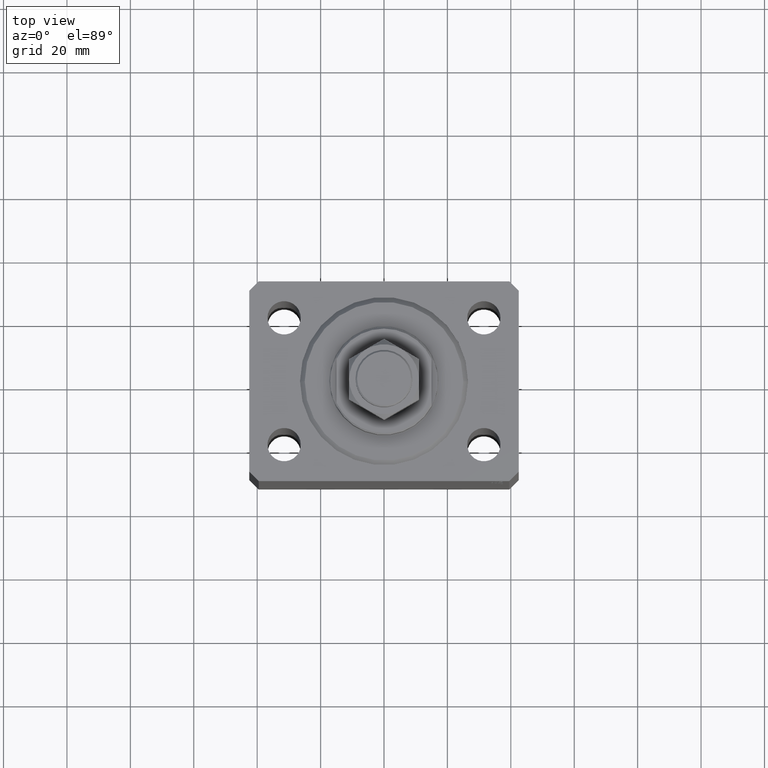
[diagram: clean part render]
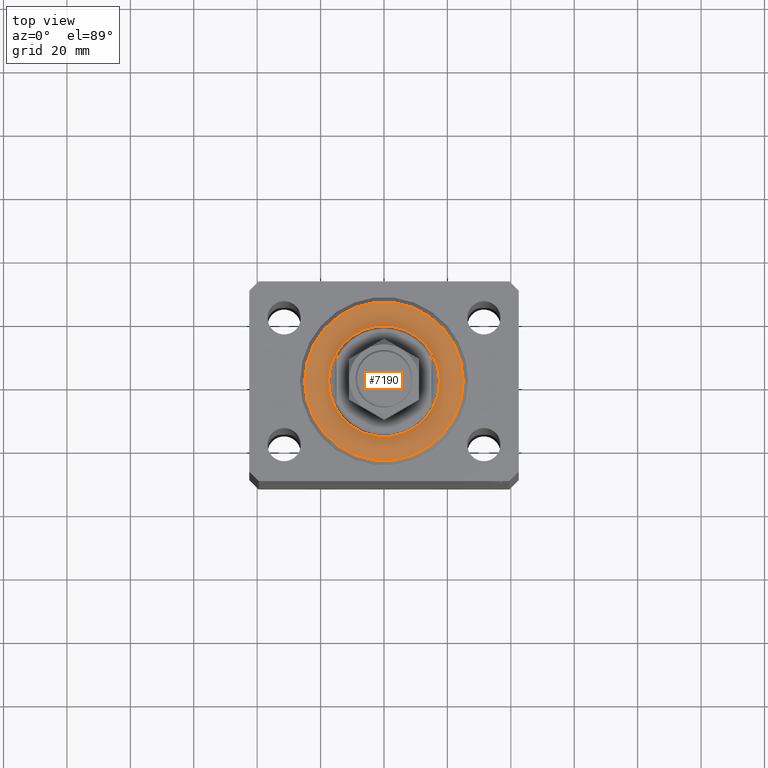
[diagram: same view with one face highlighted and labeled with its STEP entity id]
A machine part, top view. The second image highlights one B-rep face of the part: STEP entity #7190.
In plain terms, the highlighted planar face has unit normal (0, 0, -1).
Its self-contained STEP definition (entity closure, byte-faithful):
#1430 = CARTESIAN_POINT ( 'NONE',  ( 0.000000000000000000, 0.000000000000000000, 0.000000000000000000 ) ) ;
#1540 = CIRCLE ( 'NONE', #15719, 24.99999999999998224 ) ;
#1579 = EDGE_CURVE ( 'NONE', #27327, #24650, #1540, .T. ) ;
#2826 = CARTESIAN_POINT ( 'NONE',  ( 17.50000000000000000, 0.000000000000000000, 2.168404344971008868E-16 ) ) ;
#4639 = EDGE_CURVE ( 'NONE', #34357, #20422, #6293, .T. ) ;
#5587 = DIRECTION ( 'NONE',  ( 1.000000000000000000, 0.000000000000000000, 0.000000000000000000 ) ) ;
#6166 = EDGE_LOOP ( 'NONE', ( #14381, #7577 ) ) ;
#6293 = CIRCLE ( 'NONE', #16726, 17.50000000000000000 ) ;
#7190 = ADVANCED_FACE ( 'NONE', ( #40186, #22625 ), #36230, .F. ) ;
#7354 = CARTESIAN_POINT ( 'NONE',  ( 0.000000000000000000, 0.000000000000000000, 0.000000000000000000 ) ) ;
#7577 = ORIENTED_EDGE ( 'NONE', *, *, #17760, .T. ) ;
#8354 = DIRECTION ( 'NONE',  ( 1.000000000000000000, 0.000000000000000000, -0.000000000000000000 ) ) ;
#9271 = DIRECTION ( 'NONE',  ( 1.000000000000000000, 0.000000000000000000, 0.000000000000000000 ) ) ;
#10237 = AXIS2_PLACEMENT_3D ( 'NONE', #23127, #37650, #5587 ) ;
#10477 = CARTESIAN_POINT ( 'NONE',  ( 24.99999999999998224, 0.000000000000000000, 0.000000000000000000 ) ) ;
#12072 = CARTESIAN_POINT ( 'NONE',  ( -24.99999999999998224, 3.153465507804433615E-15, 0.000000000000000000 ) ) ;
#14143 = ORIENTED_EDGE ( 'NONE', *, *, #16873, .T. ) ;
#14381 = ORIENTED_EDGE ( 'NONE', *, *, #4639, .T. ) ;
#15686 = DIRECTION ( 'NONE',  ( 0.000000000000000000, 0.000000000000000000, 1.000000000000000000 ) ) ;
#15719 = AXIS2_PLACEMENT_3D ( 'NONE', #7354, #28893, #36386 ) ;
#16532 = CARTESIAN_POINT ( 'NONE',  ( -17.50000000000000000, 2.143131898507868643E-15, 2.168404344971008868E-16 ) ) ;
#16726 = AXIS2_PLACEMENT_3D ( 'NONE', #1430, #15686, #29975 ) ;
#16873 = EDGE_CURVE ( 'NONE', #24650, #27327, #28154, .T. ) ;
#17760 = EDGE_CURVE ( 'NONE', #20422, #34357, #43872, .T. ) ;
#19795 = EDGE_LOOP ( 'NONE', ( #14143, #22991 ) ) ;
#20422 = VERTEX_POINT ( 'NONE', #16532 ) ;
#22625 = FACE_OUTER_BOUND ( 'NONE', #19795, .T. ) ;
#22991 = ORIENTED_EDGE ( 'NONE', *, *, #1579, .T. ) ;
#23127 = CARTESIAN_POINT ( 'NONE',  ( 0.000000000000000000, 0.000000000000000000, 0.000000000000000000 ) ) ;
#24650 = VERTEX_POINT ( 'NONE', #10477 ) ;
#27296 = CARTESIAN_POINT ( 'NONE',  ( 0.000000000000000000, 0.000000000000000000, 0.000000000000000000 ) ) ;
#27327 = VERTEX_POINT ( 'NONE', #12072 ) ;
#28154 = CIRCLE ( 'NONE', #10237, 24.99999999999998224 ) ;
#28893 = DIRECTION ( 'NONE',  ( -0.000000000000000000, -0.000000000000000000, -1.000000000000000000 ) ) ;
#29208 = CARTESIAN_POINT ( 'NONE',  ( 0.000000000000000000, 0.000000000000000000, 0.000000000000000000 ) ) ;
#29975 = DIRECTION ( 'NONE',  ( 1.000000000000000000, 0.000000000000000000, 0.000000000000000000 ) ) ;
#34357 = VERTEX_POINT ( 'NONE', #2826 ) ;
#36230 = PLANE ( 'NONE',  #41491 ) ;
#36386 = DIRECTION ( 'NONE',  ( 1.000000000000000000, 0.000000000000000000, 0.000000000000000000 ) ) ;
#37650 = DIRECTION ( 'NONE',  ( -0.000000000000000000, -0.000000000000000000, -1.000000000000000000 ) ) ;
#40186 = FACE_BOUND ( 'NONE', #6166, .T. ) ;
#40865 = DIRECTION ( 'NONE',  ( 0.000000000000000000, 0.000000000000000000, 1.000000000000000000 ) ) ;
#41491 = AXIS2_PLACEMENT_3D ( 'NONE', #29208, #43464, #8354 ) ;
#43137 = AXIS2_PLACEMENT_3D ( 'NONE', #27296, #40865, #9271 ) ;
#43464 = DIRECTION ( 'NONE',  ( 0.000000000000000000, 0.000000000000000000, 1.000000000000000000 ) ) ;
#43872 = CIRCLE ( 'NONE', #43137, 17.50000000000000000 ) ;